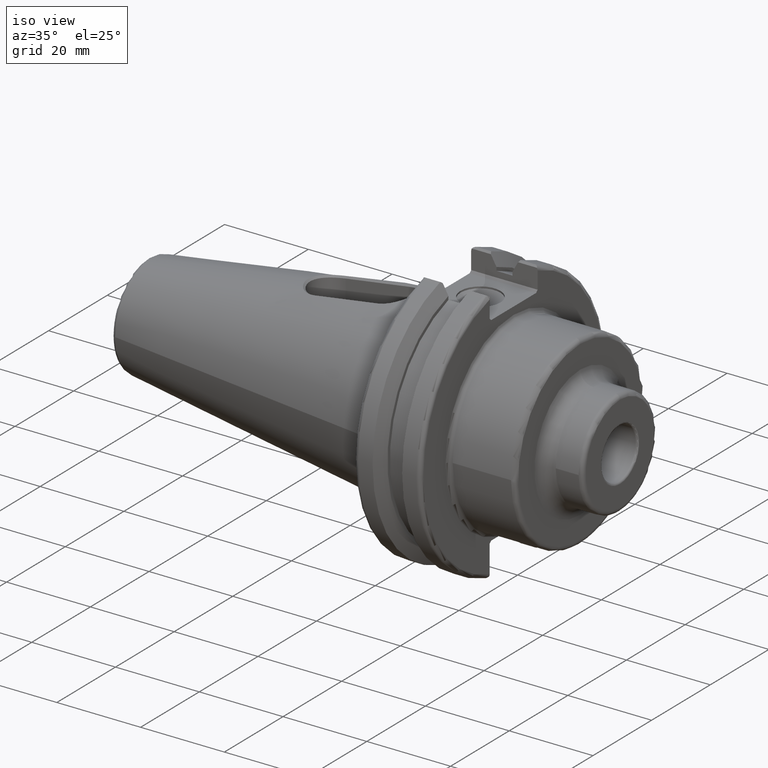
[diagram: clean part render]
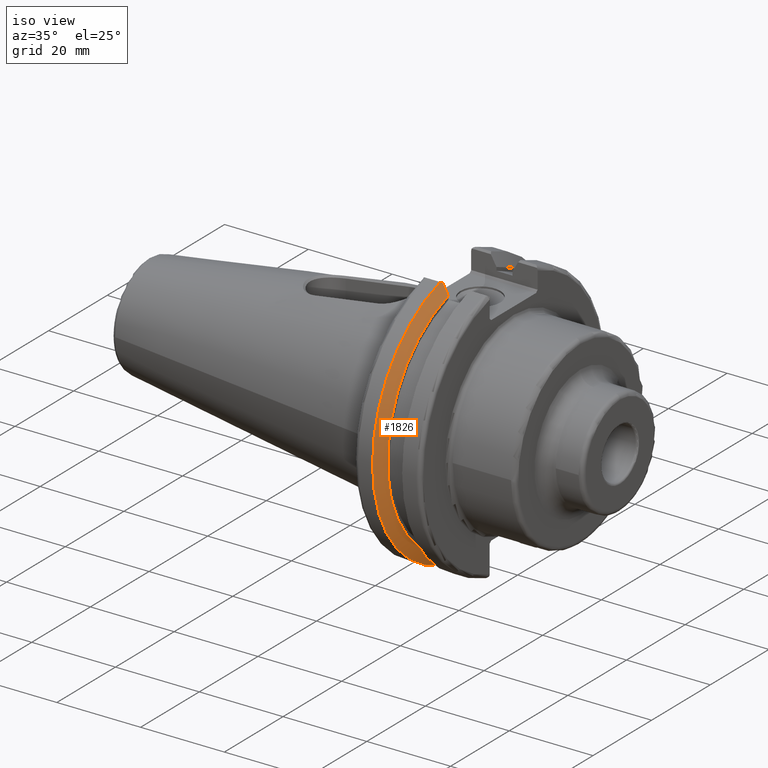
[diagram: same view with one face highlighted and labeled with its STEP entity id]
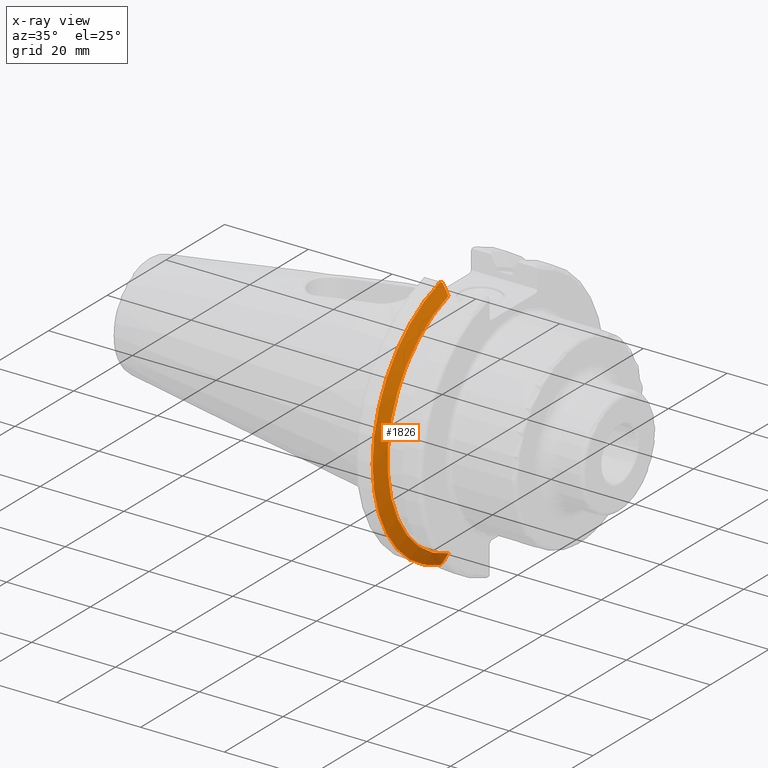
[diagram: x-ray of the same camera — body ghosted, the highlighted face saturated]
A machine part, iso view. The second image highlights one B-rep face of the part: STEP entity #1826.
The next image is the same camera in x-ray: the body ghosted, the highlighted face saturated — about 3% of this face is hidden behind the body in this view.
In plain terms, the highlighted conical surface has half-angle 60 deg.
Its self-contained STEP definition (entity closure, byte-faithful):
#22=(
BOUNDED_CURVE()
B_SPLINE_CURVE(2,(#3625,#3626,#3627),.UNSPECIFIED.,.F.,.F.)
B_SPLINE_CURVE_WITH_KNOTS((3,3),(0.,0.276549142796606),.UNSPECIFIED.)
CURVE()
GEOMETRIC_REPRESENTATION_ITEM()
RATIONAL_B_SPLINE_CURVE((1.,1.00095203903674,1.00031614444931))
REPRESENTATION_ITEM('')
);
#25=(
BOUNDED_CURVE()
B_SPLINE_CURVE(2,(#3653,#3654,#3655),.UNSPECIFIED.,.F.,.F.)
B_SPLINE_CURVE_WITH_KNOTS((3,3),(0.0550586467396013,0.331607789535851),
 .UNSPECIFIED.)
CURVE()
GEOMETRIC_REPRESENTATION_ITEM()
RATIONAL_B_SPLINE_CURVE((1.00031614445107,1.00095203904202,1.))
REPRESENTATION_ITEM('')
);
#26=(
BOUNDED_CURVE()
B_SPLINE_CURVE(2,(#3688,#3689,#3690),.UNSPECIFIED.,.F.,.F.)
B_SPLINE_CURVE_WITH_KNOTS((3,3),(0.,0.0639048713675736),.UNSPECIFIED.)
CURVE()
GEOMETRIC_REPRESENTATION_ITEM()
RATIONAL_B_SPLINE_CURVE((1.,1.00028444218293,1.00047644010591))
REPRESENTATION_ITEM('')
);
#27=(
BOUNDED_CURVE()
B_SPLINE_CURVE(2,(#3696,#3697,#3698),.UNSPECIFIED.,.F.,.F.)
B_SPLINE_CURVE_WITH_KNOTS((3,3),(0.329353533631217,0.393258405001025),
 .UNSPECIFIED.)
CURVE()
GEOMETRIC_REPRESENTATION_ITEM()
RATIONAL_B_SPLINE_CURVE((1.00047644010584,1.0002844421829,1.))
REPRESENTATION_ITEM('')
);
#386=CONICAL_SURFACE('',#2000,30.3546886482472,1.0471975511966);
#528=FACE_OUTER_BOUND('',#637,.T.);
#637=EDGE_LOOP('',(#1672,#1673,#1674,#1675,#1676,#1677));
#706=CIRCLE('',#1966,31.75);
#718=CIRCLE('',#2001,28.9593772964944);
#867=VERTEX_POINT('',#3622);
#868=VERTEX_POINT('',#3624);
#877=VERTEX_POINT('',#3650);
#878=VERTEX_POINT('',#3652);
#882=VERTEX_POINT('',#3686);
#883=VERTEX_POINT('',#3692);
#1107=EDGE_CURVE('',#868,#867,#22,.T.);
#1118=EDGE_CURVE('',#878,#877,#25,.T.);
#1126=EDGE_CURVE('',#882,#867,#26,.T.);
#1128=EDGE_CURVE('',#882,#883,#706,.T.);
#1129=EDGE_CURVE('',#878,#883,#27,.T.);
#1168=EDGE_CURVE('',#868,#877,#718,.T.);
#1672=ORIENTED_EDGE('',*,*,#1129,.F.);
#1673=ORIENTED_EDGE('',*,*,#1118,.T.);
#1674=ORIENTED_EDGE('',*,*,#1168,.F.);
#1675=ORIENTED_EDGE('',*,*,#1107,.T.);
#1676=ORIENTED_EDGE('',*,*,#1126,.F.);
#1677=ORIENTED_EDGE('',*,*,#1128,.T.);
#1826=ADVANCED_FACE('',(#528),#386,.T.);
#1966=AXIS2_PLACEMENT_3D('',#3694,#2336,#2337);
#2000=AXIS2_PLACEMENT_3D('',#3810,#2421,#2422);
#2001=AXIS2_PLACEMENT_3D('',#3811,#2423,#2424);
#2336=DIRECTION('center_axis',(1.,0.,0.));
#2337=DIRECTION('ref_axis',(0.,0.,-1.));
#2421=DIRECTION('center_axis',(-1.,0.,0.));
#2422=DIRECTION('ref_axis',(0.,-1.,-1.22464679914735E-16));
#2423=DIRECTION('center_axis',(1.,0.,0.));
#2424=DIRECTION('ref_axis',(0.,0.,-1.));
#3622=CARTESIAN_POINT('',(7.87958530351256,-8.19,30.1755016258903));
#3624=CARTESIAN_POINT('',(9.212,-8.19,27.7771386827498));
#3625=CARTESIAN_POINT('Ctrl Pts',(9.212,-8.19,27.7771386827498));
#3626=CARTESIAN_POINT('Ctrl Pts',(8.57336356152746,-8.19,28.9303689539641));
#3627=CARTESIAN_POINT('Ctrl Pts',(7.87958530351256,-8.19,30.1755016258903));
#3650=CARTESIAN_POINT('',(9.212,-8.19,-27.7771386827498));
#3652=CARTESIAN_POINT('',(7.87958530351256,-8.19,-30.1755016258903));
#3653=CARTESIAN_POINT('Ctrl Pts',(7.87958530351256,-8.19,-30.1755016258903));
#3654=CARTESIAN_POINT('Ctrl Pts',(8.57336356151926,-8.19,-28.9303689539789));
#3655=CARTESIAN_POINT('Ctrl Pts',(9.212,-8.19,-27.7771386827498));
#3686=CARTESIAN_POINT('',(7.60083323092435,-8.67204822802685,30.5427254764662));
#3688=CARTESIAN_POINT('Ctrl Pts',(7.60083323092435,-8.67204822802686,30.5427254764662));
#3689=CARTESIAN_POINT('Ctrl Pts',(7.74189148121629,-8.42917748262642,30.3577067892629));
#3690=CARTESIAN_POINT('Ctrl Pts',(7.87958530351256,-8.19,30.1755016258903));
#3692=CARTESIAN_POINT('',(7.60083323092435,-8.67204822802685,-30.5427254764662));
#3694=CARTESIAN_POINT('Origin',(7.60083323092435,0.,0.));
#3696=CARTESIAN_POINT('Ctrl Pts',(7.87958530351256,-8.19,-30.1755016258903));
#3697=CARTESIAN_POINT('Ctrl Pts',(7.7418914812116,-8.42917748263464,-30.3577067892692));
#3698=CARTESIAN_POINT('Ctrl Pts',(7.60083323092435,-8.67204822802687,-30.5427254764662));
#3810=CARTESIAN_POINT('Origin',(8.40641661546218,0.,0.));
#3811=CARTESIAN_POINT('Origin',(9.212,0.,0.));